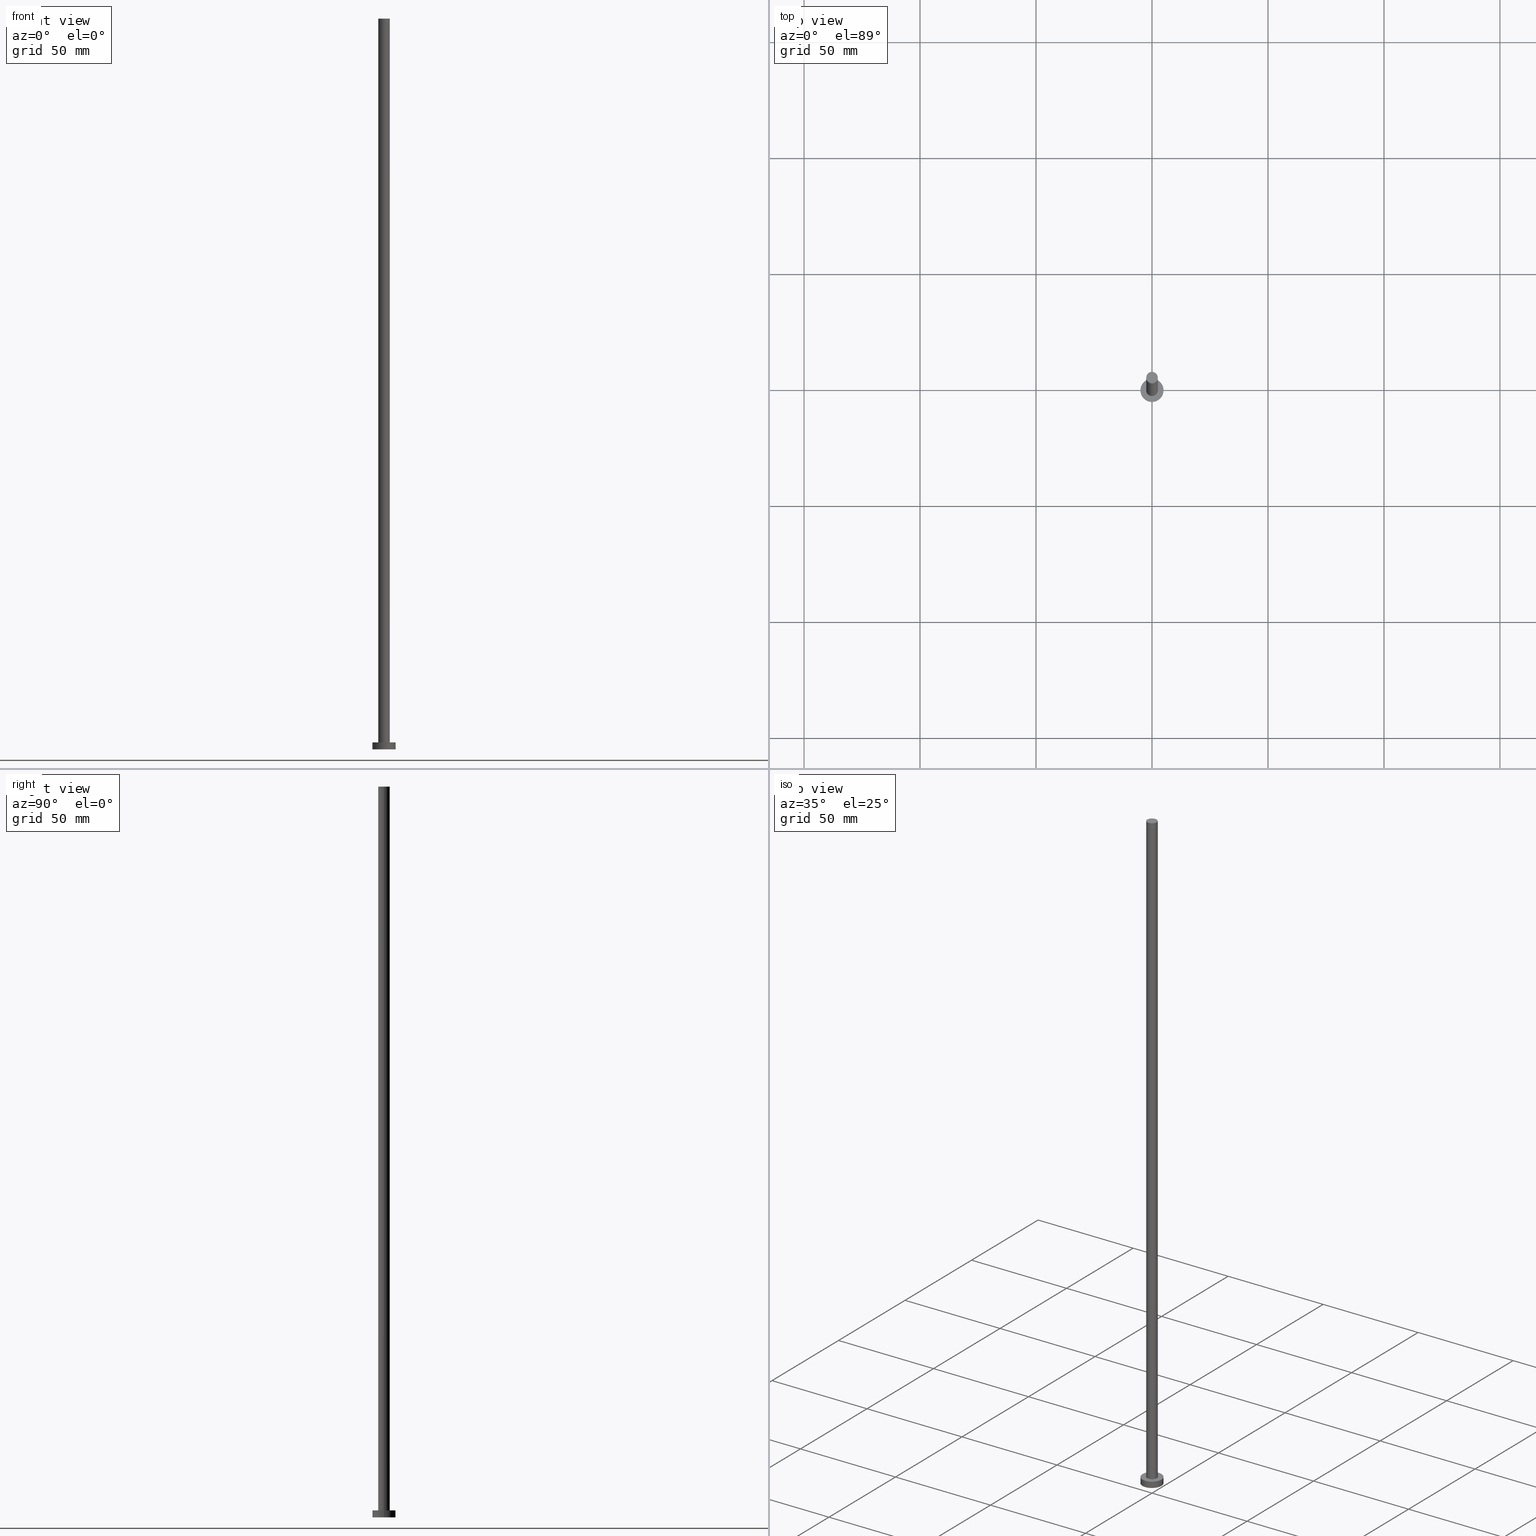
[diagram: canonical four-view strip — front | top / right | iso, engineering-drawing reading convention]
A machine part, canonical four-view strip (front | top / right | iso — engineering-drawing reading convention). The complete STEP part file that produces these views, byte-faithful:
ISO-10303-21;
HEADER;
FILE_DESCRIPTION (( 'STEP AP203' ),
    '1' );
FILE_NAME ('943a.STEP',
    '2023-02-13T13:25:51',
    ( '' ),
    ( '' ),
    'SwSTEP 2.0',
    'SolidWorks 2019',
    '' );
FILE_SCHEMA (( 'CONFIG_CONTROL_DESIGN' ));
ENDSEC;

DATA;
#1 = EDGE_LOOP ( 'NONE', ( #19, #97, #57, #175 ) ) ;
#2 = ORIENTED_EDGE ( 'NONE', *, *, #76, .T. ) ;
#3 = AXIS2_PLACEMENT_3D ( 'NONE', #104, #167, #246 ) ;
#4 = EDGE_LOOP ( 'NONE', ( #201, #41 ) ) ;
#5 = DATE_AND_TIME ( #204, #61 ) ;
#6 = APPROVAL_ROLE ( '' ) ;
#7 = DIRECTION ( 'NONE',  ( 0.000000000000000000, 0.000000000000000000, 1.000000000000000000 ) ) ;
#8 = CC_DESIGN_SECURITY_CLASSIFICATION ( #224, ( #116 ) ) ;
#9 = CARTESIAN_POINT ( 'NONE',  ( 0.000000000000000000, 0.000000000000000000, 315.0000000000000000 ) ) ;
#10 = DIRECTION ( 'NONE',  ( -0.000000000000000000, -0.000000000000000000, -1.000000000000000000 ) ) ;
#11 = FACE_OUTER_BOUND ( 'NONE', #155, .T. ) ;
#12 = ADVANCED_FACE ( 'NONE', ( #141 ), #219, .T. ) ;
#13 = DIRECTION ( 'NONE',  ( 0.000000000000000000, 0.000000000000000000, 1.000000000000000000 ) ) ;
#14 = PERSON_AND_ORGANIZATION ( #191, #94 ) ;
#15 = CYLINDRICAL_SURFACE ( 'NONE', #134, 5.000000000000000000 ) ;
#16 = CIRCLE ( 'NONE', #114, 5.000000000000000000 ) ;
#17 = CARTESIAN_POINT ( 'NONE',  ( 0.000000000000000000, 0.000000000000000000, 315.0000000000000000 ) ) ;
#18 = EDGE_CURVE ( 'NONE', #59, #178, #112, .T. ) ;
#19 = ORIENTED_EDGE ( 'NONE', *, *, #18, .F. ) ;
#20 = CC_DESIGN_DATE_AND_TIME_ASSIGNMENT ( #43, #153, ( #224 ) ) ;
#21 = PERSON_AND_ORGANIZATION_ROLE ( 'creator' ) ;
#22 = ORIENTED_EDGE ( 'NONE', *, *, #252, .F. ) ;
#23 = COORDINATED_UNIVERSAL_TIME_OFFSET ( 1, 0, .AHEAD. ) ;
#24 = ORIENTED_EDGE ( 'NONE', *, *, #140, .T. ) ;
#25 = AXIS2_PLACEMENT_3D ( 'NONE', #131, #111, #248 ) ;
#26 = CALENDAR_DATE ( 2023, 13, 2 ) ;
#27 = AXIS2_PLACEMENT_3D ( 'NONE', #159, #243, #222 ) ;
#28 = APPROVAL_DATE_TIME ( #142, #237 ) ;
#29 = PRODUCT ( '943a', '943a', '', ( #74 ) ) ;
#30 = VECTOR ( 'NONE', #192, 1000.000000000000000 ) ;
#31 = DIRECTION ( 'NONE',  ( 1.000000000000000000, 0.000000000000000000, -0.000000000000000000 ) ) ;
#32 = EDGE_CURVE ( 'NONE', #178, #234, #126, .T. ) ;
#33 = DIRECTION ( 'NONE',  ( 0.000000000000000000, 0.000000000000000000, 1.000000000000000000 ) ) ;
#34 = APPLICATION_PROTOCOL_DEFINITION ( 'international standard', 'config_control_design', 1994, #190 ) ;
#35 = UNCERTAINTY_MEASURE_WITH_UNIT (LENGTH_MEASURE( 1.000000000000000082E-05 ), #172, 'distance_accuracy_value', 'NONE');
#36 = CYLINDRICAL_SURFACE ( 'NONE', #247, 2.500000000000000000 ) ;
#37 = DIRECTION ( 'NONE',  ( 0.000000000000000000, 0.000000000000000000, 1.000000000000000000 ) ) ;
#38 = LOCAL_TIME ( 14, 25, 51.00000000000000000, #139 ) ;
#39 = ORIENTED_EDGE ( 'NONE', *, *, #252, .T. ) ;
#40 = CALENDAR_DATE ( 2023, 13, 2 ) ;
#41 = ORIENTED_EDGE ( 'NONE', *, *, #108, .F. ) ;
#42 = ORIENTED_EDGE ( 'NONE', *, *, #209, .T. ) ;
#43 = DATE_AND_TIME ( #125, #38 ) ;
#44 = ORIENTED_EDGE ( 'NONE', *, *, #249, .T. ) ;
#45 = COORDINATED_UNIVERSAL_TIME_OFFSET ( 1, 0, .AHEAD. ) ;
#46 = PERSON_AND_ORGANIZATION_ROLE ( 'design_supplier' ) ;
#47 = CARTESIAN_POINT ( 'NONE',  ( 0.000000000000000000, 0.000000000000000000, 315.0000000000000000 ) ) ;
#48 = CARTESIAN_POINT ( 'NONE',  ( 2.500000000000000000, 3.061616997868383141E-16, 315.0000000000000000 ) ) ;
#49 = EDGE_CURVE ( 'NONE', #215, #234, #60, .T. ) ;
#50 = FACE_OUTER_BOUND ( 'NONE', #1, .T. ) ;
#51 = CLOSED_SHELL ( 'NONE', ( #137, #162, #102, #149, #52, #166, #12 ) ) ;
#52 = ADVANCED_FACE ( 'NONE', ( #207 ), #85, .F. ) ;
#53 = CARTESIAN_POINT ( 'NONE',  ( 0.000000000000000000, 0.000000000000000000, 3.000000000000000000 ) ) ;
#54 = FACE_OUTER_BOUND ( 'NONE', #64, .T. ) ;
#55 = CARTESIAN_POINT ( 'NONE',  ( 0.000000000000000000, 0.000000000000000000, 3.000000000000000000 ) ) ;
#56 = LINE ( 'NONE', #91, #193 ) ;
#57 = ORIENTED_EDGE ( 'NONE', *, *, #49, .T. ) ;
#58 = CARTESIAN_POINT ( 'NONE',  ( -5.000000000000000000, 0.000000000000000000, 3.000000000000000000 ) ) ;
#59 = VERTEX_POINT ( 'NONE', #48 ) ;
#60 = CIRCLE ( 'NONE', #194, 2.500000000000000000 ) ;
#61 = LOCAL_TIME ( 14, 25, 51.00000000000000000, #240 ) ;
#62 = MANIFOLD_SOLID_BREP ( 'P�idat vysunut�m3', #51 ) ;
#63 = APPROVAL_STATUS ( 'not_yet_approved' ) ;
#64 = EDGE_LOOP ( 'NONE', ( #255, #198, #122, #24 ) ) ;
#65 = DIRECTION ( 'NONE',  ( 0.000000000000000000, 0.000000000000000000, 1.000000000000000000 ) ) ;
#66 = DIRECTION ( 'NONE',  ( -0.000000000000000000, -0.000000000000000000, -1.000000000000000000 ) ) ;
#67 = DIRECTION ( 'NONE',  ( 1.000000000000000000, 0.000000000000000000, 0.000000000000000000 ) ) ;
#68 = DIRECTION ( 'NONE',  ( 0.000000000000000000, 0.000000000000000000, 1.000000000000000000 ) ) ;
#69 = APPROVAL_PERSON_ORGANIZATION ( #181, #71, #6 ) ;
#70 = DIRECTION ( 'NONE',  ( -0.000000000000000000, -0.000000000000000000, -1.000000000000000000 ) ) ;
#71 = APPROVAL ( #183, 'NEUR�EN�' ) ;
#72 = DIRECTION ( 'NONE',  ( -1.000000000000000000, 0.000000000000000000, 0.000000000000000000 ) ) ;
#73 = PRODUCT_DEFINITION ( 'NEZN�M�', '', #116, #147 ) ;
#74 = MECHANICAL_CONTEXT ( 'NONE', #190, 'mechanical' ) ;
#75 = CARTESIAN_POINT ( 'NONE',  ( 2.500000000000000000, 3.061616997868383141E-16, 3.000000000000000000 ) ) ;
#76 = EDGE_CURVE ( 'NONE', #178, #59, #80, .T. ) ;
#77 = ORIENTED_EDGE ( 'NONE', *, *, #86, .F. ) ;
#78 = LOCAL_TIME ( 14, 25, 51.00000000000000000, #23 ) ;
#79 = APPROVAL_STATUS ( 'not_yet_approved' ) ;
#80 = CIRCLE ( 'NONE', #226, 2.500000000000000000 ) ;
#81 = EDGE_LOOP ( 'NONE', ( #2, #152 ) ) ;
#82 = APPLICATION_CONTEXT ( 'configuration controlled 3d designs of mechanical parts and assemblies' ) ;
#83 = DIRECTION ( 'NONE',  ( 0.000000000000000000, 0.000000000000000000, 1.000000000000000000 ) ) ;
#84 = DATE_AND_TIME ( #40, #213 ) ;
#85 = PLANE ( 'NONE',  #146 ) ;
#86 = EDGE_CURVE ( 'NONE', #180, #138, #217, .T. ) ;
#87 = CYLINDRICAL_SURFACE ( 'NONE', #3, 2.500000000000000000 ) ;
#88 = CC_DESIGN_APPROVAL ( #71, ( #224 ) ) ;
#89 = DIRECTION ( 'NONE',  ( 1.000000000000000000, 0.000000000000000000, 0.000000000000000000 ) ) ;
#90 = CARTESIAN_POINT ( 'NONE',  ( -2.500000000000000000, 0.000000000000000000, 3.000000000000000000 ) ) ;
#91 = CARTESIAN_POINT ( 'NONE',  ( -5.000000000000000000, 0.000000000000000000, 3.000000000000000000 ) ) ;
#92 =( GEOMETRIC_REPRESENTATION_CONTEXT ( 3 ) GLOBAL_UNCERTAINTY_ASSIGNED_CONTEXT ( ( #35 ) ) GLOBAL_UNIT_ASSIGNED_CONTEXT ( ( #172, #210, #173 ) ) REPRESENTATION_CONTEXT ( 'NONE', 'WORKASPACE' ) );
#93 = DIRECTION ( 'NONE',  ( 1.000000000000000000, 0.000000000000000000, -0.000000000000000000 ) ) ;
#94 = ORGANIZATION ( 'NEUR�EN�', 'NEUR�EN�', '' ) ;
#95 = EDGE_LOOP ( 'NONE', ( #119, #77, #42, #120 ) ) ;
#96 = DIRECTION ( 'NONE',  ( -0.000000000000000000, -0.000000000000000000, -1.000000000000000000 ) ) ;
#97 = ORIENTED_EDGE ( 'NONE', *, *, #211, .T. ) ;
#98 = AXIS2_PLACEMENT_3D ( 'NONE', #127, #10, #165 ) ;
#99 = APPROVAL_DATE_TIME ( #158, #185 ) ;
#100 = CIRCLE ( 'NONE', #27, 2.500000000000000000 ) ;
#101 = CARTESIAN_POINT ( 'NONE',  ( 5.000000000000000000, 6.123233995736766282E-16, 3.000000000000000000 ) ) ;
#102 = ADVANCED_FACE ( 'NONE', ( #186 ), #129, .T. ) ;
#103 = APPROVAL_ROLE ( '' ) ;
#104 = CARTESIAN_POINT ( 'NONE',  ( 0.000000000000000000, 0.000000000000000000, 315.0000000000000000 ) ) ;
#105 = DIRECTION ( 'NONE',  ( 0.000000000000000000, 0.000000000000000000, 1.000000000000000000 ) ) ;
#106 = CC_DESIGN_PERSON_AND_ORGANIZATION_ASSIGNMENT ( #157, #199, ( #73 ) ) ;
#107 = DIRECTION ( 'NONE',  ( 1.000000000000000000, 0.000000000000000000, -0.000000000000000000 ) ) ;
#108 = EDGE_CURVE ( 'NONE', #254, #151, #16, .T. ) ;
#109 = DIRECTION ( 'NONE',  ( 1.000000000000000000, 0.000000000000000000, 0.000000000000000000 ) ) ;
#110 = PERSON_AND_ORGANIZATION ( #191, #94 ) ;
#111 = DIRECTION ( 'NONE',  ( 0.000000000000000000, 0.000000000000000000, 1.000000000000000000 ) ) ;
#112 = CIRCLE ( 'NONE', #170, 2.500000000000000000 ) ;
#113 = DIRECTION ( 'NONE',  ( -1.000000000000000000, 0.000000000000000000, 0.000000000000000000 ) ) ;
#114 = AXIS2_PLACEMENT_3D ( 'NONE', #161, #68, #145 ) ;
#115 = ORIENTED_EDGE ( 'NONE', *, *, #140, .F. ) ;
#116 = PRODUCT_DEFINITION_FORMATION_WITH_SPECIFIED_SOURCE ( 'LIBOVOLN�', '', #29, .NOT_KNOWN. ) ;
#117 = SHAPE_DEFINITION_REPRESENTATION ( #196, #253 ) ;
#118 = CC_DESIGN_PERSON_AND_ORGANIZATION_ASSIGNMENT ( #110, #232, ( #29 ) ) ;
#119 = ORIENTED_EDGE ( 'NONE', *, *, #249, .F. ) ;
#120 = ORIENTED_EDGE ( 'NONE', *, *, #203, .T. ) ;
#121 = CC_DESIGN_DATE_AND_TIME_ASSIGNMENT ( #5, #163, ( #73 ) ) ;
#122 = ORIENTED_EDGE ( 'NONE', *, *, #32, .T. ) ;
#123 = PERSON_AND_ORGANIZATION ( #191, #94 ) ;
#124 = DIRECTION ( 'NONE',  ( 0.000000000000000000, 0.000000000000000000, 1.000000000000000000 ) ) ;
#125 = CALENDAR_DATE ( 2023, 13, 2 ) ;
#126 = LINE ( 'NONE', #227, #233 ) ;
#127 = CARTESIAN_POINT ( 'NONE',  ( 0.000000000000000000, 0.000000000000000000, 3.000000000000000000 ) ) ;
#128 = APPROVAL_PERSON_ORGANIZATION ( #14, #237, #177 ) ;
#129 = CYLINDRICAL_SURFACE ( 'NONE', #98, 5.000000000000000000 ) ;
#130 = CARTESIAN_POINT ( 'NONE',  ( 0.000000000000000000, 0.000000000000000000, 0.000000000000000000 ) ) ;
#131 = CARTESIAN_POINT ( 'NONE',  ( 0.000000000000000000, 0.000000000000000000, 3.000000000000000000 ) ) ;
#132 = CARTESIAN_POINT ( 'NONE',  ( 0.000000000000000000, 0.000000000000000000, 3.000000000000000000 ) ) ;
#133 = AXIS2_PLACEMENT_3D ( 'NONE', #202, #124, #31 ) ;
#134 = AXIS2_PLACEMENT_3D ( 'NONE', #55, #70, #113 ) ;
#135 = ORIENTED_EDGE ( 'NONE', *, *, #49, .F. ) ;
#136 = PERSON_AND_ORGANIZATION ( #191, #94 ) ;
#137 = ADVANCED_FACE ( 'NONE', ( #50 ), #87, .T. ) ;
#138 = VERTEX_POINT ( 'NONE', #101 ) ;
#139 = COORDINATED_UNIVERSAL_TIME_OFFSET ( 1, 0, .AHEAD. ) ;
#140 = EDGE_CURVE ( 'NONE', #234, #215, #100, .T. ) ;
#141 = FACE_OUTER_BOUND ( 'NONE', #81, .T. ) ;
#142 = DATE_AND_TIME ( #26, #239 ) ;
#143 = DIRECTION ( 'NONE',  ( 1.000000000000000000, 0.000000000000000000, 0.000000000000000000 ) ) ;
#144 = PERSON_AND_ORGANIZATION ( #191, #94 ) ;
#145 = DIRECTION ( 'NONE',  ( 1.000000000000000000, 0.000000000000000000, 0.000000000000000000 ) ) ;
#146 = AXIS2_PLACEMENT_3D ( 'NONE', #205, #105, #107 ) ;
#147 = DESIGN_CONTEXT ( 'detailed design', #82, 'design' ) ;
#148 = CARTESIAN_POINT ( 'NONE',  ( -5.000000000000000000, 0.000000000000000000, 0.000000000000000000 ) ) ;
#149 = ADVANCED_FACE ( 'NONE', ( #184, #244 ), #223, .T. ) ;
#150 = CARTESIAN_POINT ( 'NONE',  ( 2.500000000000000000, 3.061616997868383141E-16, 315.0000000000000000 ) ) ;
#151 = VERTEX_POINT ( 'NONE', #148 ) ;
#152 = ORIENTED_EDGE ( 'NONE', *, *, #18, .T. ) ;
#153 = DATE_TIME_ROLE ( 'classification_date' ) ;
#154 = AXIS2_PLACEMENT_3D ( 'NONE', #130, #13, #89 ) ;
#155 = EDGE_LOOP ( 'NONE', ( #22, #44, #218, #197 ) ) ;
#156 = CC_DESIGN_APPROVAL ( #237, ( #73 ) ) ;
#157 = PERSON_AND_ORGANIZATION ( #191, #94 ) ;
#158 = DATE_AND_TIME ( #220, #78 ) ;
#159 = CARTESIAN_POINT ( 'NONE',  ( 0.000000000000000000, 0.000000000000000000, 3.000000000000000000 ) ) ;
#160 = APPROVAL_DATE_TIME ( #84, #71 ) ;
#161 = CARTESIAN_POINT ( 'NONE',  ( 0.000000000000000000, 0.000000000000000000, 0.000000000000000000 ) ) ;
#162 = ADVANCED_FACE ( 'NONE', ( #11 ), #15, .T. ) ;
#163 = DATE_TIME_ROLE ( 'creation_date' ) ;
#164 = DIRECTION ( 'NONE',  ( 0.000000000000000000, 0.000000000000000000, 1.000000000000000000 ) ) ;
#165 = DIRECTION ( 'NONE',  ( -1.000000000000000000, 0.000000000000000000, 0.000000000000000000 ) ) ;
#166 = ADVANCED_FACE ( 'NONE', ( #54 ), #36, .T. ) ;
#167 = DIRECTION ( 'NONE',  ( -0.000000000000000000, -0.000000000000000000, -1.000000000000000000 ) ) ;
#168 = CC_DESIGN_PERSON_AND_ORGANIZATION_ASSIGNMENT ( #136, #46, ( #116 ) ) ;
#169 = CC_DESIGN_APPROVAL ( #185, ( #116 ) ) ;
#170 = AXIS2_PLACEMENT_3D ( 'NONE', #47, #164, #225 ) ;
#171 = LINE ( 'NONE', #150, #30 ) ;
#172 =( LENGTH_UNIT ( ) NAMED_UNIT ( * ) SI_UNIT ( .MILLI., .METRE. ) );
#173 =( NAMED_UNIT ( * ) SI_UNIT ( $, .STERADIAN. ) SOLID_ANGLE_UNIT ( ) );
#174 = CIRCLE ( 'NONE', #25, 5.000000000000000000 ) ;
#175 = ORIENTED_EDGE ( 'NONE', *, *, #32, .F. ) ;
#176 = CARTESIAN_POINT ( 'NONE',  ( 5.000000000000000000, 6.123233995736766282E-16, 0.000000000000000000 ) ) ;
#177 = APPROVAL_ROLE ( '' ) ;
#178 = VERTEX_POINT ( 'NONE', #195 ) ;
#179 = SECURITY_CLASSIFICATION_LEVEL ( 'unclassified' ) ;
#180 = VERTEX_POINT ( 'NONE', #58 ) ;
#181 = PERSON_AND_ORGANIZATION ( #191, #94 ) ;
#182 = DIRECTION ( 'NONE',  ( 1.000000000000000000, 0.000000000000000000, 0.000000000000000000 ) ) ;
#183 = APPROVAL_STATUS ( 'not_yet_approved' ) ;
#184 = FACE_BOUND ( 'NONE', #236, .T. ) ;
#185 = APPROVAL ( #63, 'NEUR�EN�' ) ;
#186 = FACE_OUTER_BOUND ( 'NONE', #95, .T. ) ;
#187 = CARTESIAN_POINT ( 'NONE',  ( 0.000000000000000000, 0.000000000000000000, 3.000000000000000000 ) ) ;
#188 = LINE ( 'NONE', #212, #230 ) ;
#189 = APPLICATION_PROTOCOL_DEFINITION ( 'international standard', 'config_control_design', 1994, #82 ) ;
#190 = APPLICATION_CONTEXT ( 'configuration controlled 3d designs of mechanical parts and assemblies' ) ;
#191 = PERSON ( 'NEUR�EN�', 'NEUR�EN�', 'NEUR�EN�', ('NEUR�EN�'), ('NEUR�EN�'), ('NEUR�EN�') ) ;
#192 = DIRECTION ( 'NONE',  ( -0.000000000000000000, -0.000000000000000000, -1.000000000000000000 ) ) ;
#193 = VECTOR ( 'NONE', #251, 1000.000000000000000 ) ;
#194 = AXIS2_PLACEMENT_3D ( 'NONE', #53, #83, #67 ) ;
#195 = CARTESIAN_POINT ( 'NONE',  ( -2.500000000000000000, 0.000000000000000000, 315.0000000000000000 ) ) ;
#196 = PRODUCT_DEFINITION_SHAPE ( 'NONE', 'NONE',  #73 ) ;
#197 = ORIENTED_EDGE ( 'NONE', *, *, #209, .F. ) ;
#198 = ORIENTED_EDGE ( 'NONE', *, *, #76, .F. ) ;
#199 = PERSON_AND_ORGANIZATION_ROLE ( 'creator' ) ;
#200 = APPROVAL_PERSON_ORGANIZATION ( #144, #185, #103 ) ;
#201 = ORIENTED_EDGE ( 'NONE', *, *, #203, .F. ) ;
#202 = CARTESIAN_POINT ( 'NONE',  ( 0.000000000000000000, 0.000000000000000000, 315.0000000000000000 ) ) ;
#203 = EDGE_CURVE ( 'NONE', #151, #254, #206, .T. ) ;
#204 = CALENDAR_DATE ( 2023, 13, 2 ) ;
#205 = CARTESIAN_POINT ( 'NONE',  ( 0.000000000000000000, 0.000000000000000000, 0.000000000000000000 ) ) ;
#206 = CIRCLE ( 'NONE', #154, 5.000000000000000000 ) ;
#207 = FACE_OUTER_BOUND ( 'NONE', #4, .T. ) ;
#208 = AXIS2_PLACEMENT_3D ( 'NONE', #132, #37, #93 ) ;
#209 = EDGE_CURVE ( 'NONE', #180, #151, #56, .T. ) ;
#210 =( NAMED_UNIT ( * ) PLANE_ANGLE_UNIT ( ) SI_UNIT ( $, .RADIAN. ) );
#211 = EDGE_CURVE ( 'NONE', #59, #215, #171, .T. ) ;
#212 = CARTESIAN_POINT ( 'NONE',  ( 5.000000000000000000, 6.123233995736766282E-16, 3.000000000000000000 ) ) ;
#213 = LOCAL_TIME ( 14, 25, 51.00000000000000000, #216 ) ;
#214 = AXIS2_PLACEMENT_3D ( 'NONE', #187, #65, #143 ) ;
#215 = VERTEX_POINT ( 'NONE', #75 ) ;
#216 = COORDINATED_UNIVERSAL_TIME_OFFSET ( 1, 0, .AHEAD. ) ;
#217 = CIRCLE ( 'NONE', #214, 5.000000000000000000 ) ;
#218 = ORIENTED_EDGE ( 'NONE', *, *, #108, .T. ) ;
#219 = PLANE ( 'NONE',  #133 ) ;
#220 = CALENDAR_DATE ( 2023, 13, 2 ) ;
#221 = CC_DESIGN_PERSON_AND_ORGANIZATION_ASSIGNMENT ( #123, #242, ( #224 ) ) ;
#222 = DIRECTION ( 'NONE',  ( 1.000000000000000000, 0.000000000000000000, 0.000000000000000000 ) ) ;
#223 = PLANE ( 'NONE',  #208 ) ;
#224 = SECURITY_CLASSIFICATION ( '', '', #179 ) ;
#225 = DIRECTION ( 'NONE',  ( 1.000000000000000000, 0.000000000000000000, 0.000000000000000000 ) ) ;
#226 = AXIS2_PLACEMENT_3D ( 'NONE', #9, #7, #182 ) ;
#227 = CARTESIAN_POINT ( 'NONE',  ( -2.500000000000000000, 0.000000000000000000, 315.0000000000000000 ) ) ;
#228 = PRODUCT_RELATED_PRODUCT_CATEGORY ( 'detail', '', ( #29 ) ) ;
#229 = CARTESIAN_POINT ( 'NONE',  ( 0.000000000000000000, 0.000000000000000000, 0.000000000000000000 ) ) ;
#230 = VECTOR ( 'NONE', #231, 1000.000000000000000 ) ;
#231 = DIRECTION ( 'NONE',  ( -0.000000000000000000, -0.000000000000000000, -1.000000000000000000 ) ) ;
#232 = PERSON_AND_ORGANIZATION_ROLE ( 'design_owner' ) ;
#233 = VECTOR ( 'NONE', #66, 1000.000000000000000 ) ;
#234 = VERTEX_POINT ( 'NONE', #90 ) ;
#235 = EDGE_LOOP ( 'NONE', ( #241, #39 ) ) ;
#236 = EDGE_LOOP ( 'NONE', ( #115, #135 ) ) ;
#237 = APPROVAL ( #79, 'NEUR�EN�' ) ;
#238 = AXIS2_PLACEMENT_3D ( 'NONE', #229, #33, #109 ) ;
#239 = LOCAL_TIME ( 14, 25, 51.00000000000000000, #45 ) ;
#240 = COORDINATED_UNIVERSAL_TIME_OFFSET ( 1, 0, .AHEAD. ) ;
#241 = ORIENTED_EDGE ( 'NONE', *, *, #86, .T. ) ;
#242 = PERSON_AND_ORGANIZATION_ROLE ( 'classification_officer' ) ;
#243 = DIRECTION ( 'NONE',  ( 0.000000000000000000, 0.000000000000000000, 1.000000000000000000 ) ) ;
#244 = FACE_OUTER_BOUND ( 'NONE', #235, .T. ) ;
#245 = PERSON_AND_ORGANIZATION ( #191, #94 ) ;
#246 = DIRECTION ( 'NONE',  ( -1.000000000000000000, 0.000000000000000000, 0.000000000000000000 ) ) ;
#247 = AXIS2_PLACEMENT_3D ( 'NONE', #17, #96, #72 ) ;
#248 = DIRECTION ( 'NONE',  ( 1.000000000000000000, 0.000000000000000000, 0.000000000000000000 ) ) ;
#249 = EDGE_CURVE ( 'NONE', #138, #254, #188, .T. ) ;
#250 = CC_DESIGN_PERSON_AND_ORGANIZATION_ASSIGNMENT ( #245, #21, ( #116 ) ) ;
#251 = DIRECTION ( 'NONE',  ( -0.000000000000000000, -0.000000000000000000, -1.000000000000000000 ) ) ;
#252 = EDGE_CURVE ( 'NONE', #138, #180, #174, .T. ) ;
#253 = ADVANCED_BREP_SHAPE_REPRESENTATION ( '943a', ( #62, #238 ), #92 ) ;
#254 = VERTEX_POINT ( 'NONE', #176 ) ;
#255 = ORIENTED_EDGE ( 'NONE', *, *, #211, .F. ) ;
ENDSEC;
END-ISO-10303-21;
